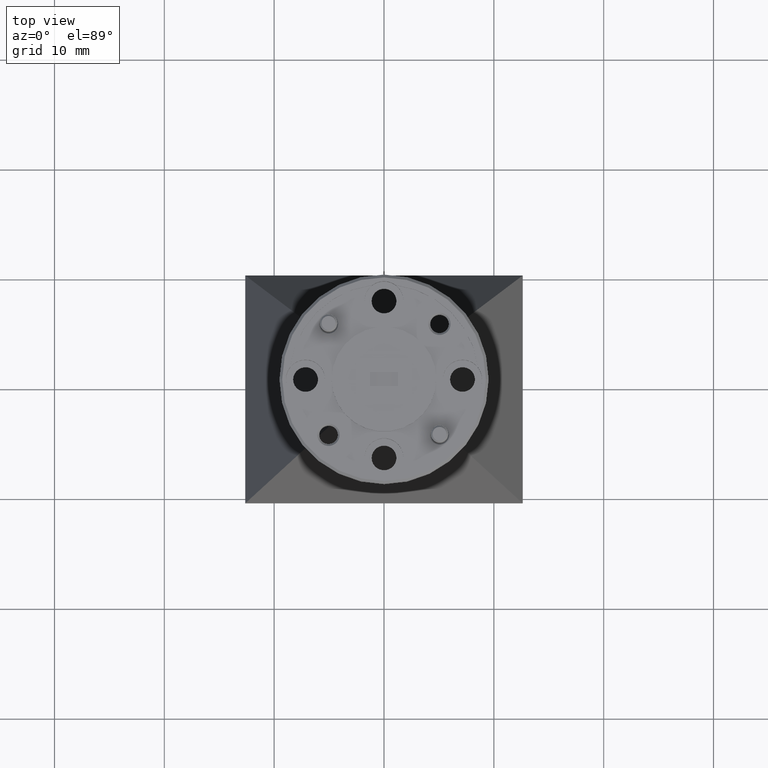
[diagram: clean part render]
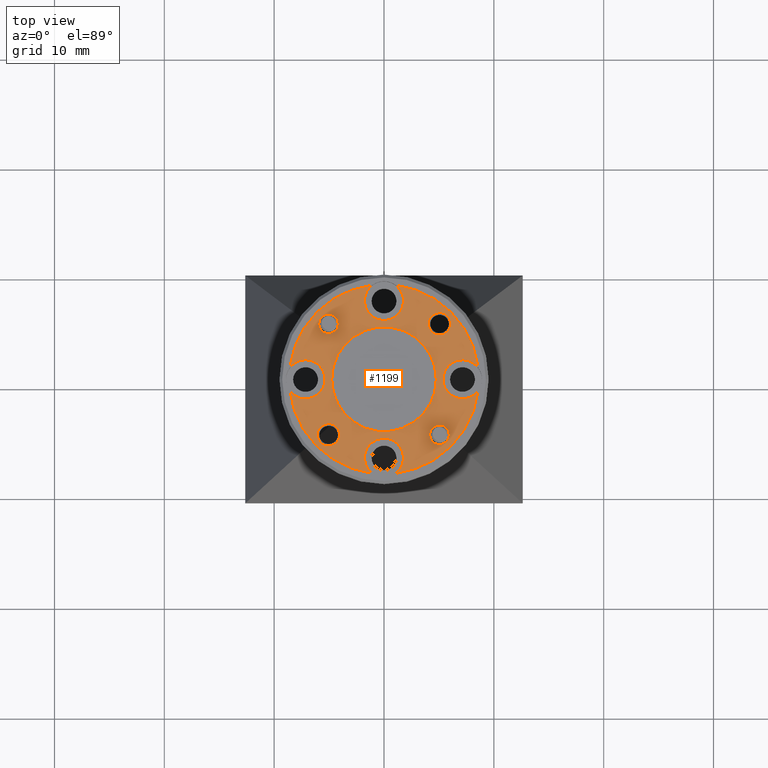
[diagram: same view with one face highlighted and labeled with its STEP entity id]
A machine part, top view. The second image highlights one B-rep face of the part: STEP entity #1199.
In plain terms, the highlighted planar face has unit normal (-0, 0, 1).
Its self-contained STEP definition (entity closure, byte-faithful):
#25 = DIRECTION ( 'NONE',  ( 1.000000000000000000, 0.000000000000000000, 0.000000000000000000 ) ) ;
#30 = EDGE_LOOP ( 'NONE', ( #2253, #609 ) ) ;
#34 = DIRECTION ( 'NONE',  ( -0.000000000000000000, 0.000000000000000000, 1.000000000000000000 ) ) ;
#41 = CIRCLE ( 'NONE', #708, 0.3399999999999999689 ) ;
#55 = CIRCLE ( 'NONE', #1479, 0.04000000000000001471 ) ;
#61 = CARTESIAN_POINT ( 'NONE',  ( 0.1875000000000000278, 0.000000000000000000, -0.02000000000000000042 ) ) ;
#89 = EDGE_LOOP ( 'NONE', ( #2370, #2476 ) ) ;
#90 = CARTESIAN_POINT ( 'NONE',  ( 0.000000000000000000, 0.000000000000000000, -0.02000000000000000042 ) ) ;
#97 = AXIS2_PLACEMENT_3D ( 'NONE', #1580, #1760, #2391 ) ;
#106 = DIRECTION ( 'NONE',  ( 1.000000000000000000, 0.000000000000000000, 0.000000000000000000 ) ) ;
#116 = DIRECTION ( 'NONE',  ( -0.000000000000000000, -0.000000000000000000, 1.000000000000000000 ) ) ;
#117 = DIRECTION ( 'NONE',  ( -0.000000000000000000, 0.000000000000000000, 1.000000000000000000 ) ) ;
#168 = AXIS2_PLACEMENT_3D ( 'NONE', #2470, #1466, #2274 ) ;
#170 = EDGE_CURVE ( 'NONE', #2171, #664, #377, .T. ) ;
#181 = DIRECTION ( 'NONE',  ( -0.000000000000000000, -0.000000000000000000, 1.000000000000000000 ) ) ;
#199 = VERTEX_POINT ( 'NONE', #2122 ) ;
#204 = EDGE_CURVE ( 'NONE', #284, #409, #41, .T. ) ;
#212 = CIRCLE ( 'NONE', #549, 0.07000000000000000666 ) ;
#242 = CARTESIAN_POINT ( 'NONE',  ( 0.000000000000000000, 0.000000000000000000, -0.02000000000000000042 ) ) ;
#263 = CIRCLE ( 'NONE', #97, 0.03500000000000000333 ) ;
#277 = CARTESIAN_POINT ( 'NONE',  ( 0.000000000000000000, 0.2812500000000000555, -0.02000000000000000042 ) ) ;
#279 = DIRECTION ( 'NONE',  ( -0.000000000000000000, 0.000000000000000000, 1.000000000000000000 ) ) ;
#284 = VERTEX_POINT ( 'NONE', #849 ) ;
#291 = DIRECTION ( 'NONE',  ( -0.000000000000000000, -0.000000000000000000, 1.000000000000000000 ) ) ;
#296 = CARTESIAN_POINT ( 'NONE',  ( 0.04176564826505121258, -0.3374250000000000305, -0.02000000000000000042 ) ) ;
#305 = CIRCLE ( 'NONE', #2022, 0.03500000000000000333 ) ;
#325 = ORIENTED_EDGE ( 'NONE', *, *, #1219, .F. ) ;
#357 = CARTESIAN_POINT ( 'NONE',  ( 0.04176564826505121258, 0.3374250000000000305, -0.02000000000000000042 ) ) ;
#377 = CIRCLE ( 'NONE', #2477, 0.1875000000000000278 ) ;
#382 = EDGE_CURVE ( 'NONE', #481, #958, #1889, .T. ) ;
#409 = VERTEX_POINT ( 'NONE', #2086 ) ;
#435 = VERTEX_POINT ( 'NONE', #1480 ) ;
#437 = CARTESIAN_POINT ( 'NONE',  ( 0.3374250000000000305, 0.04176564826505121258, -0.02000000000000000042 ) ) ;
#481 = VERTEX_POINT ( 'NONE', #784 ) ;
#486 = DIRECTION ( 'NONE',  ( -0.000000000000000000, 0.000000000000000000, 1.000000000000000000 ) ) ;
#499 = CARTESIAN_POINT ( 'NONE',  ( -0.1988737822087160989, -0.1988737822087169593, -0.02000000000000000042 ) ) ;
#516 = AXIS2_PLACEMENT_3D ( 'NONE', #1672, #279, #1919 ) ;
#518 = AXIS2_PLACEMENT_3D ( 'NONE', #1129, #2500, #2490 ) ;
#519 = CARTESIAN_POINT ( 'NONE',  ( 0.000000000000000000, -0.2812500000000000555, -0.02000000000000000042 ) ) ;
#535 = VERTEX_POINT ( 'NONE', #357 ) ;
#549 = AXIS2_PLACEMENT_3D ( 'NONE', #1525, #1318, #2124 ) ;
#563 = ORIENTED_EDGE ( 'NONE', *, *, #2043, .F. ) ;
#591 = AXIS2_PLACEMENT_3D ( 'NONE', #1761, #2551, #1550 ) ;
#609 = ORIENTED_EDGE ( 'NONE', *, *, #2405, .F. ) ;
#619 = DIRECTION ( 'NONE',  ( -0.000000000000000000, 0.000000000000000000, 1.000000000000000000 ) ) ;
#623 = CIRCLE ( 'NONE', #2103, 0.07000000000000000666 ) ;
#625 = AXIS2_PLACEMENT_3D ( 'NONE', #2250, #1425, #25 ) ;
#628 = AXIS2_PLACEMENT_3D ( 'NONE', #1549, #1154, #2600 ) ;
#642 = CARTESIAN_POINT ( 'NONE',  ( 0.1588737822087160911, 0.1988737822087170148, -0.02000000000000000042 ) ) ;
#660 = VERTEX_POINT ( 'NONE', #642 ) ;
#664 = VERTEX_POINT ( 'NONE', #61 ) ;
#669 = EDGE_CURVE ( 'NONE', #2374, #1012, #1175, .T. ) ;
#693 = DIRECTION ( 'NONE',  ( 1.000000000000000000, 0.000000000000000000, 0.000000000000000000 ) ) ;
#706 = CARTESIAN_POINT ( 'NONE',  ( 0.000000000000000000, 0.000000000000000000, -0.02000000000000000042 ) ) ;
#708 = AXIS2_PLACEMENT_3D ( 'NONE', #720, #2388, #1967 ) ;
#720 = CARTESIAN_POINT ( 'NONE',  ( 0.000000000000000000, 0.000000000000000000, -0.02000000000000000042 ) ) ;
#754 = AXIS2_PLACEMENT_3D ( 'NONE', #242, #34, #1212 ) ;
#756 = CARTESIAN_POINT ( 'NONE',  ( 0.1988737822087160989, 0.1988737822087170148, -0.02000000000000000042 ) ) ;
#760 = CIRCLE ( 'NONE', #518, 0.07000000000000000666 ) ;
#784 = CARTESIAN_POINT ( 'NONE',  ( 0.2338737822087161855, -0.1988737822087169038, -0.02000000000000000042 ) ) ;
#794 = ORIENTED_EDGE ( 'NONE', *, *, #1045, .T. ) ;
#806 = ORIENTED_EDGE ( 'NONE', *, *, #2379, .F. ) ;
#836 = CARTESIAN_POINT ( 'NONE',  ( 0.1638737822087161788, -0.1988737822087169038, -0.02000000000000000042 ) ) ;
#845 = CIRCLE ( 'NONE', #628, 0.07000000000000000666 ) ;
#849 = CARTESIAN_POINT ( 'NONE',  ( -0.3374250000000000305, -0.04176564826505121258, -0.02000000000000000042 ) ) ;
#851 = DIRECTION ( 'NONE',  ( 1.000000000000000000, 0.000000000000000000, 0.000000000000000000 ) ) ;
#882 = EDGE_CURVE ( 'NONE', #1494, #535, #623, .T. ) ;
#923 = ORIENTED_EDGE ( 'NONE', *, *, #1575, .F. ) ;
#924 = AXIS2_PLACEMENT_3D ( 'NONE', #2130, #116, #2521 ) ;
#929 = DIRECTION ( 'NONE',  ( -0.000000000000000000, 0.000000000000000000, 1.000000000000000000 ) ) ;
#933 = CARTESIAN_POINT ( 'NONE',  ( 0.1988737822087161822, -0.1988737822087169038, -0.02000000000000000042 ) ) ;
#938 = ORIENTED_EDGE ( 'NONE', *, *, #2063, .F. ) ;
#956 = DIRECTION ( 'NONE',  ( 1.000000000000000000, 0.000000000000000000, 0.000000000000000000 ) ) ;
#958 = VERTEX_POINT ( 'NONE', #836 ) ;
#977 = CIRCLE ( 'NONE', #2243, 0.04000000000000001471 ) ;
#979 = VERTEX_POINT ( 'NONE', #437 ) ;
#986 = ORIENTED_EDGE ( 'NONE', *, *, #2330, .F. ) ;
#989 = ORIENTED_EDGE ( 'NONE', *, *, #1578, .F. ) ;
#998 = CARTESIAN_POINT ( 'NONE',  ( -0.1588737822087160911, -0.1988737822087169593, -0.02000000000000000042 ) ) ;
#1012 = VERTEX_POINT ( 'NONE', #2141 ) ;
#1045 = EDGE_CURVE ( 'NONE', #199, #1410, #1898, .T. ) ;
#1066 = CIRCLE ( 'NONE', #591, 0.04000000000000001471 ) ;
#1067 = ORIENTED_EDGE ( 'NONE', *, *, #170, .F. ) ;
#1082 = EDGE_CURVE ( 'NONE', #284, #2305, #2151, .T. ) ;
#1089 = EDGE_CURVE ( 'NONE', #979, #535, #1473, .T. ) ;
#1097 = CARTESIAN_POINT ( 'NONE',  ( -0.1988737822087161822, 0.1988737822087169038, -0.02000000000000000042 ) ) ;
#1119 = DIRECTION ( 'NONE',  ( -0.000000000000000000, 0.000000000000000000, 1.000000000000000000 ) ) ;
#1129 = CARTESIAN_POINT ( 'NONE',  ( 0.2812500000000000555, 0.000000000000000000, -0.02000000000000000042 ) ) ;
#1154 = DIRECTION ( 'NONE',  ( -0.000000000000000000, 0.000000000000000000, 1.000000000000000000 ) ) ;
#1164 = FACE_BOUND ( 'NONE', #89, .T. ) ;
#1175 = CIRCLE ( 'NONE', #754, 0.3399999999999999689 ) ;
#1176 = ORIENTED_EDGE ( 'NONE', *, *, #1551, .F. ) ;
#1199 = ADVANCED_FACE ( 'NONE', ( #1589, #1164, #1966, #1396, #1407, #1816 ), #2418, .T. ) ;
#1204 = CARTESIAN_POINT ( 'NONE',  ( 0.2112500000000000211, 8.572527594031465794E-18, -0.02000000000000000042 ) ) ;
#1209 = ORIENTED_EDGE ( 'NONE', *, *, #1089, .T. ) ;
#1212 = DIRECTION ( 'NONE',  ( 1.000000000000000000, 0.000000000000000000, 0.000000000000000000 ) ) ;
#1219 = EDGE_CURVE ( 'NONE', #979, #1224, #2396, .T. ) ;
#1223 = CIRCLE ( 'NONE', #516, 0.07000000000000000666 ) ;
#1224 = VERTEX_POINT ( 'NONE', #1204 ) ;
#1240 = DIRECTION ( 'NONE',  ( 1.000000000000000000, 0.000000000000000000, 0.000000000000000000 ) ) ;
#1297 = ORIENTED_EDGE ( 'NONE', *, *, #669, .T. ) ;
#1304 = AXIS2_PLACEMENT_3D ( 'NONE', #90, #117, #1736 ) ;
#1305 = AXIS2_PLACEMENT_3D ( 'NONE', #706, #2539, #1724 ) ;
#1308 = CIRCLE ( 'NONE', #2533, 0.07000000000000000666 ) ;
#1312 = DIRECTION ( 'NONE',  ( -0.000000000000000000, 0.000000000000000000, 1.000000000000000000 ) ) ;
#1318 = DIRECTION ( 'NONE',  ( -0.000000000000000000, 0.000000000000000000, 1.000000000000000000 ) ) ;
#1320 = ORIENTED_EDGE ( 'NONE', *, *, #2300, .F. ) ;
#1321 = EDGE_CURVE ( 'NONE', #1400, #435, #1559, .T. ) ;
#1328 = DIRECTION ( 'NONE',  ( -0.000000000000000000, 0.000000000000000000, 1.000000000000000000 ) ) ;
#1330 = DIRECTION ( 'NONE',  ( -0.000000000000000000, 0.000000000000000000, 1.000000000000000000 ) ) ;
#1331 = DIRECTION ( 'NONE',  ( 1.000000000000000000, 0.000000000000000000, 0.000000000000000000 ) ) ;
#1353 = AXIS2_PLACEMENT_3D ( 'NONE', #1097, #2321, #1986 ) ;
#1364 = VERTEX_POINT ( 'NONE', #2121 ) ;
#1370 = ORIENTED_EDGE ( 'NONE', *, *, #382, .F. ) ;
#1396 = FACE_BOUND ( 'NONE', #2294, .T. ) ;
#1400 = VERTEX_POINT ( 'NONE', #998 ) ;
#1407 = FACE_OUTER_BOUND ( 'NONE', #1767, .T. ) ;
#1410 = VERTEX_POINT ( 'NONE', #2013 ) ;
#1425 = DIRECTION ( 'NONE',  ( -0.000000000000000000, 0.000000000000000000, 1.000000000000000000 ) ) ;
#1428 = CIRCLE ( 'NONE', #1305, 0.1875000000000000278 ) ;
#1466 = DIRECTION ( 'NONE',  ( -0.000000000000000000, -0.000000000000000000, 1.000000000000000000 ) ) ;
#1473 = CIRCLE ( 'NONE', #1304, 0.3399999999999999689 ) ;
#1479 = AXIS2_PLACEMENT_3D ( 'NONE', #499, #291, #106 ) ;
#1480 = CARTESIAN_POINT ( 'NONE',  ( -0.2388737822087161344, -0.1988737822087169593, -0.02000000000000000042 ) ) ;
#1483 = CARTESIAN_POINT ( 'NONE',  ( 0.2388737822087161344, 0.1988737822087170148, -0.02000000000000000042 ) ) ;
#1486 = CARTESIAN_POINT ( 'NONE',  ( -0.2112500000000000211, 0.000000000000000000, -0.02000000000000000042 ) ) ;
#1494 = VERTEX_POINT ( 'NONE', #1664 ) ;
#1510 = DIRECTION ( 'NONE',  ( -0.000000000000000000, 0.000000000000000000, 1.000000000000000000 ) ) ;
#1516 = AXIS2_PLACEMENT_3D ( 'NONE', #1947, #929, #2312 ) ;
#1525 = CARTESIAN_POINT ( 'NONE',  ( 0.000000000000000000, 0.2812500000000000555, -0.02000000000000000042 ) ) ;
#1549 = CARTESIAN_POINT ( 'NONE',  ( 0.000000000000000000, -0.2812500000000000555, -0.02000000000000000042 ) ) ;
#1550 = DIRECTION ( 'NONE',  ( 1.000000000000000000, 0.000000000000000000, 0.000000000000000000 ) ) ;
#1551 = EDGE_CURVE ( 'NONE', #2374, #2411, #2442, .T. ) ;
#1559 = CIRCLE ( 'NONE', #168, 0.04000000000000001471 ) ;
#1571 = EDGE_LOOP ( 'NONE', ( #923, #1067 ) ) ;
#1575 = EDGE_CURVE ( 'NONE', #664, #2171, #1428, .T. ) ;
#1578 = EDGE_CURVE ( 'NONE', #958, #481, #305, .T. ) ;
#1580 = CARTESIAN_POINT ( 'NONE',  ( -0.1988737822087161822, 0.1988737822087169038, -0.02000000000000000042 ) ) ;
#1589 = FACE_BOUND ( 'NONE', #30, .T. ) ;
#1601 = CARTESIAN_POINT ( 'NONE',  ( 0.000000000000000000, 0.000000000000000000, -0.02000000000000000042 ) ) ;
#1620 = EDGE_CURVE ( 'NONE', #2463, #1494, #212, .T. ) ;
#1664 = CARTESIAN_POINT ( 'NONE',  ( 0.07000000000000000666, 0.2812500000000000555, -0.02000000000000000042 ) ) ;
#1668 = ORIENTED_EDGE ( 'NONE', *, *, #1082, .F. ) ;
#1672 = CARTESIAN_POINT ( 'NONE',  ( 0.000000000000000000, 0.2812500000000000555, -0.02000000000000000042 ) ) ;
#1710 = EDGE_CURVE ( 'NONE', #2411, #1938, #845, .T. ) ;
#1713 = ORIENTED_EDGE ( 'NONE', *, *, #1620, .F. ) ;
#1714 = DIRECTION ( 'NONE',  ( -0.000000000000000000, -0.000000000000000000, 1.000000000000000000 ) ) ;
#1724 = DIRECTION ( 'NONE',  ( 1.000000000000000000, 0.000000000000000000, 0.000000000000000000 ) ) ;
#1736 = DIRECTION ( 'NONE',  ( 1.000000000000000000, 0.000000000000000000, 0.000000000000000000 ) ) ;
#1760 = DIRECTION ( 'NONE',  ( -0.000000000000000000, -0.000000000000000000, 1.000000000000000000 ) ) ;
#1761 = CARTESIAN_POINT ( 'NONE',  ( 0.1988737822087160989, 0.1988737822087170148, -0.02000000000000000042 ) ) ;
#1767 = EDGE_LOOP ( 'NONE', ( #325, #1209, #2044, #1713, #938, #794, #986, #1668, #2047, #563, #1902, #1176, #1297, #1320 ) ) ;
#1787 = EDGE_CURVE ( 'NONE', #1364, #2210, #263, .T. ) ;
#1798 = CARTESIAN_POINT ( 'NONE',  ( -0.07000000000000000666, 0.2812500000000000555, -0.02000000000000000042 ) ) ;
#1816 = FACE_BOUND ( 'NONE', #1571, .T. ) ;
#1838 = CARTESIAN_POINT ( 'NONE',  ( -0.1638737822087161788, 0.1988737822087169038, -0.02000000000000000042 ) ) ;
#1889 = CIRCLE ( 'NONE', #924, 0.03500000000000000333 ) ;
#1891 = DIRECTION ( 'NONE',  ( 1.000000000000000000, 0.000000000000000000, 0.000000000000000000 ) ) ;
#1898 = CIRCLE ( 'NONE', #2184, 0.3399999999999999689 ) ;
#1902 = ORIENTED_EDGE ( 'NONE', *, *, #1710, .F. ) ;
#1919 = DIRECTION ( 'NONE',  ( 1.000000000000000000, 0.000000000000000000, 0.000000000000000000 ) ) ;
#1938 = VERTEX_POINT ( 'NONE', #2251 ) ;
#1947 = CARTESIAN_POINT ( 'NONE',  ( -0.2812500000000000555, 0.000000000000000000, -0.02000000000000000042 ) ) ;
#1952 = ORIENTED_EDGE ( 'NONE', *, *, #1787, .F. ) ;
#1966 = FACE_BOUND ( 'NONE', #2244, .T. ) ;
#1967 = DIRECTION ( 'NONE',  ( 1.000000000000000000, 0.000000000000000000, 0.000000000000000000 ) ) ;
#1986 = DIRECTION ( 'NONE',  ( 1.000000000000000000, 0.000000000000000000, 0.000000000000000000 ) ) ;
#2013 = CARTESIAN_POINT ( 'NONE',  ( -0.3374250000000000305, 0.04176564826505121258, -0.02000000000000000042 ) ) ;
#2022 = AXIS2_PLACEMENT_3D ( 'NONE', #933, #1714, #1331 ) ;
#2026 = CIRCLE ( 'NONE', #2362, 0.07000000000000000666 ) ;
#2043 = EDGE_CURVE ( 'NONE', #1938, #409, #2026, .T. ) ;
#2044 = ORIENTED_EDGE ( 'NONE', *, *, #882, .F. ) ;
#2047 = ORIENTED_EDGE ( 'NONE', *, *, #204, .T. ) ;
#2063 = EDGE_CURVE ( 'NONE', #199, #2463, #1223, .T. ) ;
#2086 = CARTESIAN_POINT ( 'NONE',  ( -0.04176564826505121258, -0.3374250000000000305, -0.02000000000000000042 ) ) ;
#2091 = VERTEX_POINT ( 'NONE', #1483 ) ;
#2097 = EDGE_CURVE ( 'NONE', #435, #1400, #55, .T. ) ;
#2103 = AXIS2_PLACEMENT_3D ( 'NONE', #277, #486, #1240 ) ;
#2121 = CARTESIAN_POINT ( 'NONE',  ( -0.2338737822087161855, 0.1988737822087169038, -0.02000000000000000042 ) ) ;
#2122 = CARTESIAN_POINT ( 'NONE',  ( -0.04176564826505121258, 0.3374250000000000305, -0.02000000000000000042 ) ) ;
#2124 = DIRECTION ( 'NONE',  ( 1.000000000000000000, 0.000000000000000000, 0.000000000000000000 ) ) ;
#2130 = CARTESIAN_POINT ( 'NONE',  ( 0.1988737822087161822, -0.1988737822087169038, -0.02000000000000000042 ) ) ;
#2132 = DIRECTION ( 'NONE',  ( 1.000000000000000000, 0.000000000000000000, 0.000000000000000000 ) ) ;
#2133 = DIRECTION ( 'NONE',  ( 1.000000000000000000, 0.000000000000000000, 0.000000000000000000 ) ) ;
#2141 = CARTESIAN_POINT ( 'NONE',  ( 0.3374250000000000305, -0.04176564826505121258, -0.02000000000000000042 ) ) ;
#2151 = CIRCLE ( 'NONE', #1516, 0.07000000000000000666 ) ;
#2171 = VERTEX_POINT ( 'NONE', #2412 ) ;
#2184 = AXIS2_PLACEMENT_3D ( 'NONE', #2328, #1328, #1891 ) ;
#2210 = VERTEX_POINT ( 'NONE', #1838 ) ;
#2243 = AXIS2_PLACEMENT_3D ( 'NONE', #756, #181, #956 ) ;
#2244 = EDGE_LOOP ( 'NONE', ( #806, #1952 ) ) ;
#2250 = CARTESIAN_POINT ( 'NONE',  ( 0.2812500000000000555, 0.000000000000000000, -0.02000000000000000042 ) ) ;
#2251 = CARTESIAN_POINT ( 'NONE',  ( -0.07000000000000000666, -0.2812500000000000555, -0.02000000000000000042 ) ) ;
#2253 = ORIENTED_EDGE ( 'NONE', *, *, #2439, .F. ) ;
#2274 = DIRECTION ( 'NONE',  ( 1.000000000000000000, 0.000000000000000000, 0.000000000000000000 ) ) ;
#2275 = AXIS2_PLACEMENT_3D ( 'NONE', #519, #1510, #693 ) ;
#2292 = DIRECTION ( 'NONE',  ( 1.000000000000000000, 0.000000000000000000, 0.000000000000000000 ) ) ;
#2294 = EDGE_LOOP ( 'NONE', ( #1370, #989 ) ) ;
#2300 = EDGE_CURVE ( 'NONE', #1224, #1012, #760, .T. ) ;
#2304 = CARTESIAN_POINT ( 'NONE',  ( -0.2812500000000000555, 0.000000000000000000, -0.02000000000000000042 ) ) ;
#2305 = VERTEX_POINT ( 'NONE', #1486 ) ;
#2312 = DIRECTION ( 'NONE',  ( 1.000000000000000000, 0.000000000000000000, 0.000000000000000000 ) ) ;
#2315 = CARTESIAN_POINT ( 'NONE',  ( 0.000000000000000000, -0.2812500000000000555, -0.02000000000000000042 ) ) ;
#2321 = DIRECTION ( 'NONE',  ( -0.000000000000000000, -0.000000000000000000, 1.000000000000000000 ) ) ;
#2328 = CARTESIAN_POINT ( 'NONE',  ( 0.000000000000000000, 0.000000000000000000, -0.02000000000000000042 ) ) ;
#2330 = EDGE_CURVE ( 'NONE', #2305, #1410, #1308, .T. ) ;
#2362 = AXIS2_PLACEMENT_3D ( 'NONE', #2315, #1312, #2132 ) ;
#2370 = ORIENTED_EDGE ( 'NONE', *, *, #1321, .F. ) ;
#2374 = VERTEX_POINT ( 'NONE', #296 ) ;
#2379 = EDGE_CURVE ( 'NONE', #2210, #1364, #2491, .T. ) ;
#2388 = DIRECTION ( 'NONE',  ( -0.000000000000000000, 0.000000000000000000, 1.000000000000000000 ) ) ;
#2391 = DIRECTION ( 'NONE',  ( 1.000000000000000000, 0.000000000000000000, 0.000000000000000000 ) ) ;
#2396 = CIRCLE ( 'NONE', #625, 0.07000000000000000666 ) ;
#2405 = EDGE_CURVE ( 'NONE', #660, #2091, #1066, .T. ) ;
#2411 = VERTEX_POINT ( 'NONE', #2565 ) ;
#2412 = CARTESIAN_POINT ( 'NONE',  ( -0.1875000000000000278, 2.296212748401287726E-17, -0.02000000000000000042 ) ) ;
#2418 = PLANE ( 'NONE',  #2566 ) ;
#2439 = EDGE_CURVE ( 'NONE', #2091, #660, #977, .T. ) ;
#2442 = CIRCLE ( 'NONE', #2275, 0.07000000000000000666 ) ;
#2463 = VERTEX_POINT ( 'NONE', #1798 ) ;
#2470 = CARTESIAN_POINT ( 'NONE',  ( -0.1988737822087160989, -0.1988737822087169593, -0.02000000000000000042 ) ) ;
#2476 = ORIENTED_EDGE ( 'NONE', *, *, #2097, .F. ) ;
#2477 = AXIS2_PLACEMENT_3D ( 'NONE', #2525, #1330, #2133 ) ;
#2490 = DIRECTION ( 'NONE',  ( 1.000000000000000000, 0.000000000000000000, 0.000000000000000000 ) ) ;
#2491 = CIRCLE ( 'NONE', #1353, 0.03500000000000000333 ) ;
#2500 = DIRECTION ( 'NONE',  ( -0.000000000000000000, 0.000000000000000000, 1.000000000000000000 ) ) ;
#2521 = DIRECTION ( 'NONE',  ( 1.000000000000000000, 0.000000000000000000, 0.000000000000000000 ) ) ;
#2525 = CARTESIAN_POINT ( 'NONE',  ( 0.000000000000000000, 0.000000000000000000, -0.02000000000000000042 ) ) ;
#2533 = AXIS2_PLACEMENT_3D ( 'NONE', #2304, #1119, #2292 ) ;
#2539 = DIRECTION ( 'NONE',  ( -0.000000000000000000, 0.000000000000000000, 1.000000000000000000 ) ) ;
#2551 = DIRECTION ( 'NONE',  ( -0.000000000000000000, -0.000000000000000000, 1.000000000000000000 ) ) ;
#2565 = CARTESIAN_POINT ( 'NONE',  ( 0.07000000000000000666, -0.2812500000000000555, -0.02000000000000000042 ) ) ;
#2566 = AXIS2_PLACEMENT_3D ( 'NONE', #1601, #619, #851 ) ;
#2600 = DIRECTION ( 'NONE',  ( 1.000000000000000000, 0.000000000000000000, 0.000000000000000000 ) ) ;